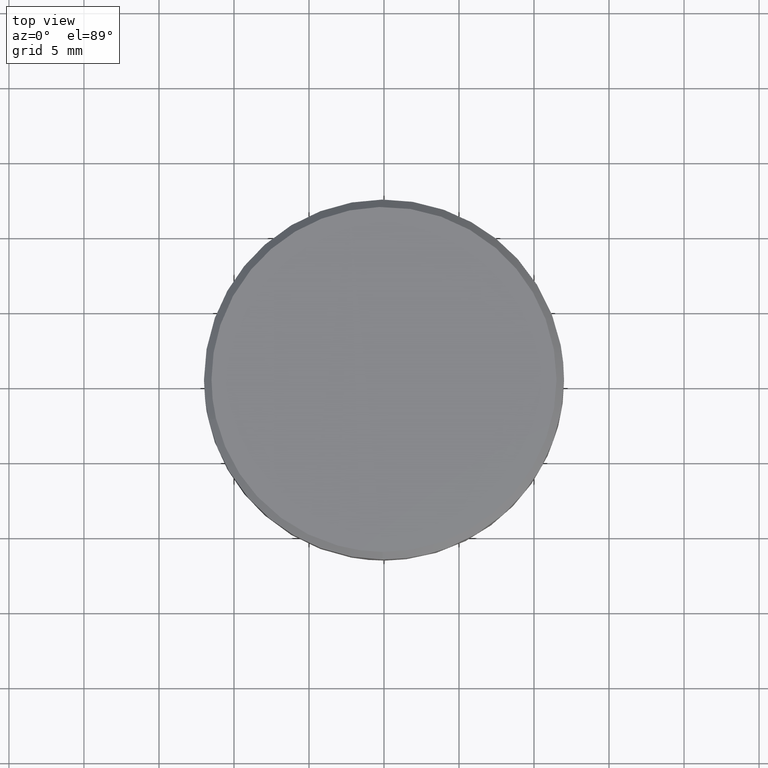
[diagram: clean part render]
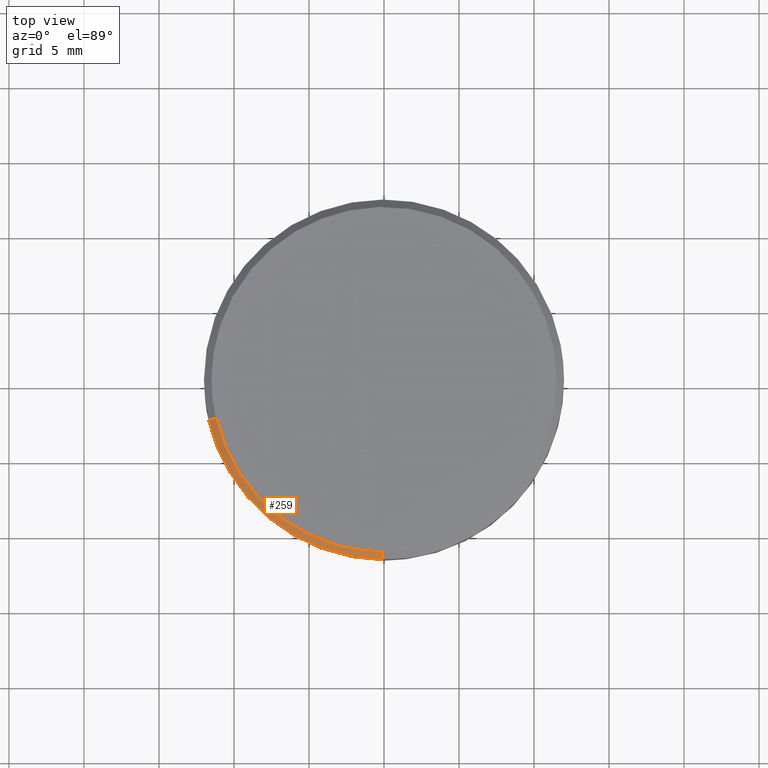
[diagram: same view with one face highlighted and labeled with its STEP entity id]
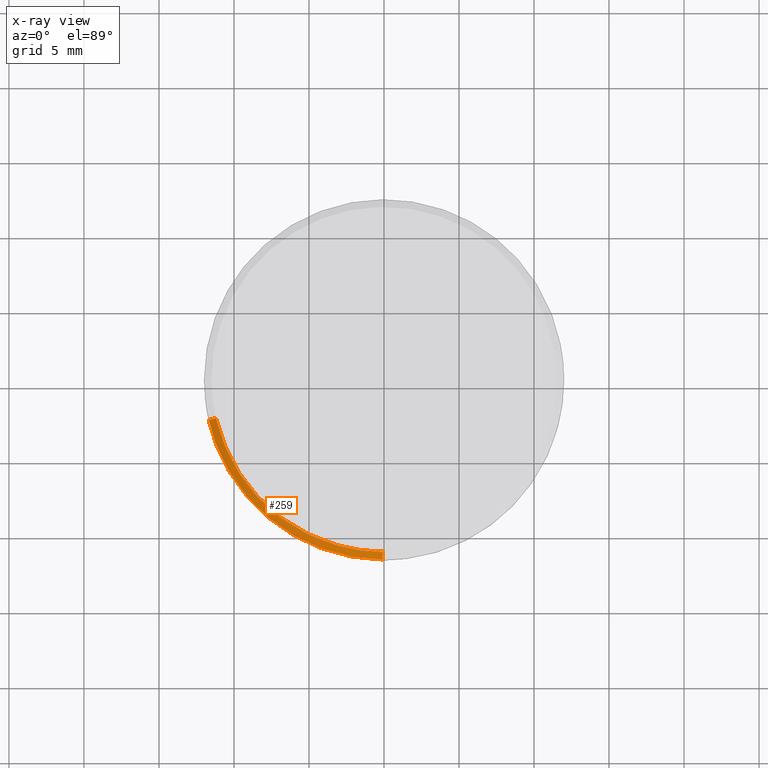
[diagram: x-ray of the same camera — body ghosted, the highlighted face saturated]
A machine part, top view. The second image highlights one B-rep face of the part: STEP entity #259.
The next image is the same camera in x-ray: the body ghosted, the highlighted face saturated — about 0% of this face is hidden behind the body in this view.
In plain terms, the highlighted face is a freeform B-spline surface patch.
Its self-contained STEP definition (entity closure, byte-faithful):
#70=CARTESIAN_POINT('',(-11.690617838139890,-2.707296541319999,14.499999999996749));
#71=VERTEX_POINT('',#70);
#87=CARTESIAN_POINT('',(-11.203508761551880,-2.594492518754810,14.999999999998041));
#88=VERTEX_POINT('',#87);
#89=CARTESIAN_POINT('',(-11.203508761551880,-2.594492518754810,14.999999999998041));
#90=CARTESIAN_POINT('',(-11.690617838139890,-2.707296541319999,14.499999999996749));
#91=QUASI_UNIFORM_CURVE('',1,(#89,#90),.UNSPECIFIED.,.F.,.U.);
#92=EDGE_CURVE('',#88,#71,#91,.T.);
#126=CARTESIAN_POINT('',(-0.100355158267969,-11.499562115242620,14.999999999995000));
#127=VERTEX_POINT('',#126);
#143=CARTESIAN_POINT('',(-0.104718426022017,-11.999543076775341,14.499999999994360));
#144=VERTEX_POINT('',#143);
#145=CARTESIAN_POINT('',(-0.100355158267969,-11.499562115242620,14.999999999995000));
#146=CARTESIAN_POINT('',(-0.104718426022017,-11.999543076775341,14.499999999994360));
#147=QUASI_UNIFORM_CURVE('',1,(#145,#146),.UNSPECIFIED.,.F.,.U.);
#148=EDGE_CURVE('',#127,#144,#147,.T.);
#215=CARTESIAN_POINT('',(-0.100246076537570,-11.487062591199610,15.012499999999999));
#216=CARTESIAN_POINT('',(-9.149637732336018,-11.408089746632660,15.012500000000003));
#217=CARTESIAN_POINT('',(-11.191331034639012,-2.591672418174083,15.012500000000003));
#218=CARTESIAN_POINT('',(-0.104830234716560,-12.012355088909320,14.487187499999999));
#219=CARTESIAN_POINT('',(-9.568042004045996,-11.929770890922430,14.487187500000001));
#220=CARTESIAN_POINT('',(-11.703100008230697,-2.710187144369708,14.487187499999997));
#228=(BOUNDED_SURFACE()B_SPLINE_SURFACE(2,1,((#215,#218),(#216,#219),(#217,#220)),.UNSPECIFIED.,.F.,.F.,.U.)B_SPLINE_SURFACE_WITH_KNOTS((3,3),(2,2),(0.0,16.645809910381690),(0.0,1.0),.UNSPECIFIED.)GEOMETRIC_REPRESENTATION_ITEM()RATIONAL_B_SPLINE_SURFACE(((1.0,1.0),(0.753969696196700,0.753969696196700),(0.921270302782944,0.921270302782944)))REPRESENTATION_ITEM('')SURFACE());
#229=CARTESIAN_POINT('',(-0.104718426022017,-11.999543076775335,14.499999999994364));
#230=CARTESIAN_POINT('',(-9.557837021778633,-11.917046960508797,14.499999999999998));
#231=CARTESIAN_POINT('',(-11.690617838139897,-2.707296541319999,14.499999999996758));
#239=(BOUNDED_CURVE()B_SPLINE_CURVE(2,(#229,#230,#231),.UNSPECIFIED.,.F.,.U.)B_SPLINE_CURVE_WITH_KNOTS((3,3),(0.751539894336205,0.961422971783842),.UNSPECIFIED.)CURVE()GEOMETRIC_REPRESENTATION_ITEM()RATIONAL_B_SPLINE_CURVE((0.996414028097587,0.753549905437684,0.923556557441542))REPRESENTATION_ITEM(''));
#240=EDGE_CURVE('',#144,#71,#239,.T.);
#241=ORIENTED_EDGE('',*,*,#240,.F.);
#242=ORIENTED_EDGE('',*,*,#148,.F.);
#243=CARTESIAN_POINT('',(-11.203508761551882,-2.594492518754810,14.999999999998039));
#244=CARTESIAN_POINT('',(-9.159593812553178,-11.420503337159055,14.999999999999996));
#245=CARTESIAN_POINT('',(-0.100355158267969,-11.499562115242622,14.999999999994998));
#253=(BOUNDED_CURVE()B_SPLINE_CURVE(2,(#243,#244,#245),.UNSPECIFIED.,.F.,.U.)B_SPLINE_CURVE_WITH_KNOTS((3,3),(0.538577028215870,0.748460105663891),.UNSPECIFIED.)CURVE()GEOMETRIC_REPRESENTATION_ITEM()RATIONAL_B_SPLINE_CURVE((0.923556557442009,0.753549905437272,0.996414028097809))REPRESENTATION_ITEM(''));
#254=EDGE_CURVE('',#88,#127,#253,.T.);
#255=ORIENTED_EDGE('',*,*,#254,.F.);
#256=ORIENTED_EDGE('',*,*,#92,.T.);
#257=EDGE_LOOP('',(#241,#242,#255,#256));
#258=FACE_OUTER_BOUND('',#257,.T.);
#259=ADVANCED_FACE('',(#258),#228,.T.);